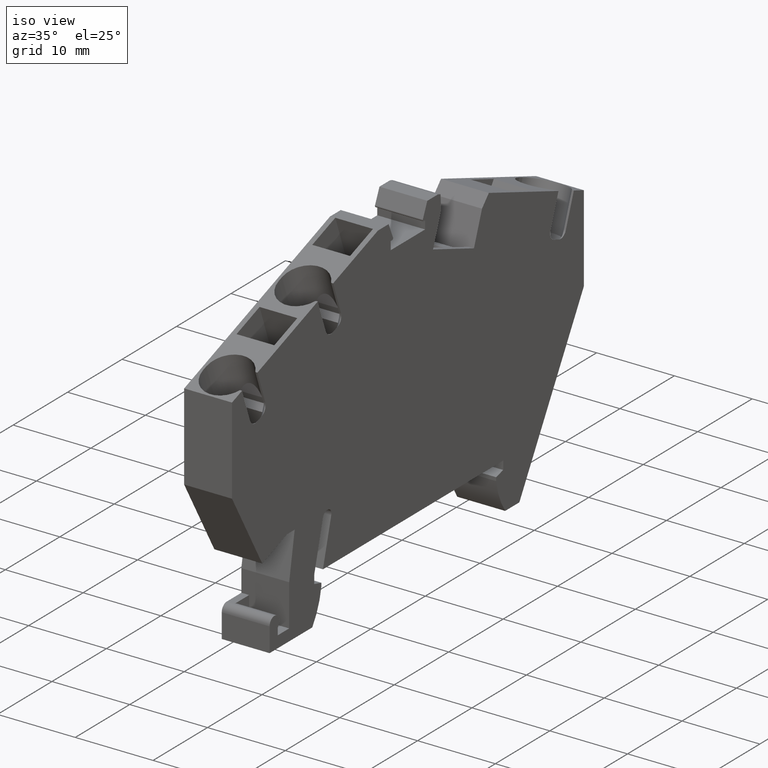
[diagram: clean part render]
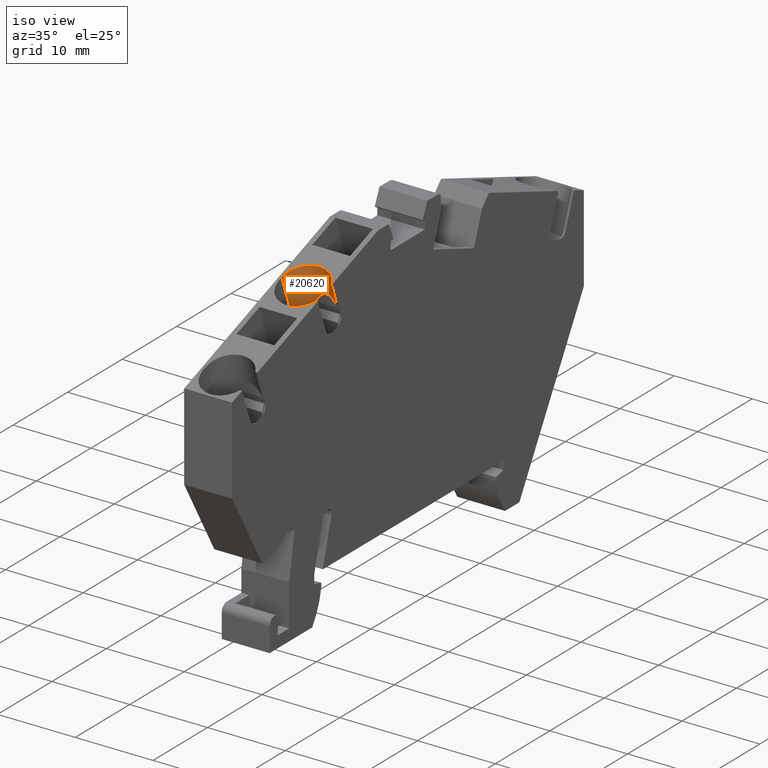
[diagram: same view with one face highlighted and labeled with its STEP entity id]
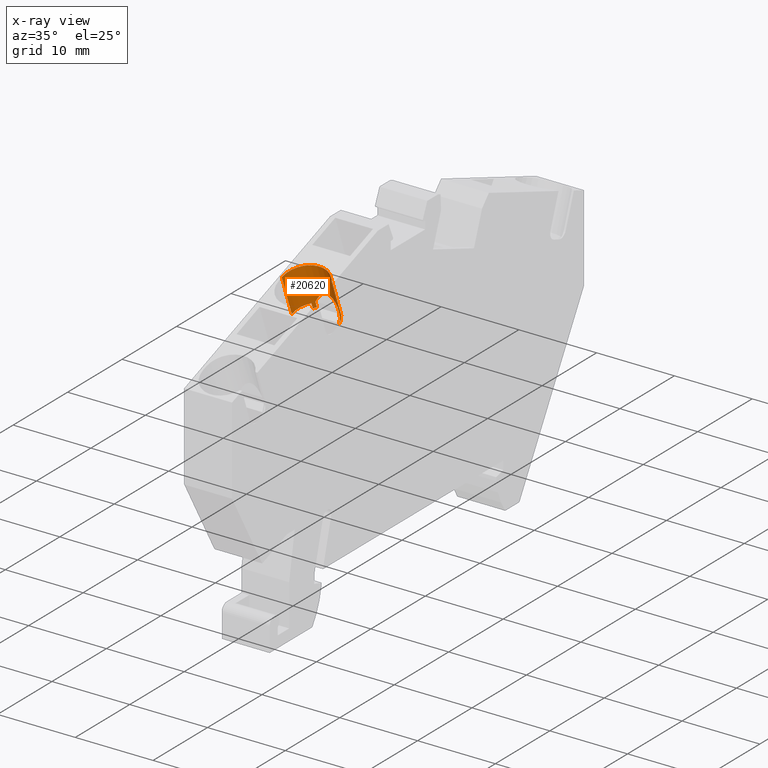
[diagram: x-ray of the same camera — body ghosted, the highlighted face saturated]
A machine part, iso view. The second image highlights one B-rep face of the part: STEP entity #20620.
The next image is the same camera in x-ray: the body ghosted, the highlighted face saturated — about 0% of this face is hidden behind the body in this view.
In plain terms, the highlighted cylindrical surface (edge-blend (fillet) strip) has radius 2.9 mm, axis along (0, -0.342, 0.9397).
Its self-contained STEP definition (entity closure, byte-faithful):
#10360=CARTESIAN_POINT('',(-88.4334431390621,45.0985003413182,
-4.85000000000002));
#10370=DIRECTION('',(-0.342020143325675,0.939692620785906,
-3.52120158727582E-15));
#10380=VECTOR('',#10370,1.);
#10390=LINE('',#10360,#10380);
#10400=CARTESIAN_POINT('',(-87.6467968094131,42.9372073135107,
-4.85000000000003));
#10410=VERTEX_POINT('',#10400);
#10420=CARTESIAN_POINT('',(-89.4595035690465,47.917578203696,
-4.85000000000003));
#10430=VERTEX_POINT('',#10420);
#10440=EDGE_CURVE('',#10410,#10430,#10390,.T.);
#11350=CARTESIAN_POINT('',(-87.4588582852486,43.0056113421785,
0.943095228297346));
#11360=VERTEX_POINT('',#11350);
#12350=CARTESIAN_POINT('',(-85.5482083957268,43.7010310300683,
-0.100000000000019));
#12360=VERTEX_POINT('',#12350);
#12390=CARTESIAN_POINT('',(-87.6467968094131,42.9372073135106,
-1.95000000000001));
#12400=DIRECTION('',(0.342020143325675,-0.939692620785906,
3.52120158727582E-15));
#12410=DIRECTION('',(0.939692620785906,0.342020143325675,0.));
#12420=AXIS2_PLACEMENT_3D('',#12390,#12400,#12410);
#12430=CIRCLE('',#12420,2.9);
#12440=EDGE_CURVE('',#12360,#11360,#12430,.T.);
#14040=CARTESIAN_POINT('',(-85.5482083957319,43.7010310300666,
-3.80000000000192));
#14050=VERTEX_POINT('',#14040);
#14080=CARTESIAN_POINT('',(-86.3348547253831,45.8623240578733,
-3.80000000000002));
#14090=DIRECTION('',(-0.342020143325675,0.939692620785906,
-3.52120158727582E-15));
#14100=VECTOR('',#14090,1.);
#14110=LINE('',#14080,#14100);
#14120=CARTESIAN_POINT('',(-85.2790132041431,42.9614233197664,
-3.80000000000002));
#14130=VERTEX_POINT('',#14120);
#14140=EDGE_CURVE('',#14130,#14050,#14110,.T.);
#14610=CARTESIAN_POINT('',(-87.0995925207768,41.4337758866536,-1.95));
#14620=DIRECTION('',(-0.642787609686522,0.766044443118993,
-6.67062597726445E-15));
#14630=DIRECTION('',(0.766044443118993,0.642787609686522,
8.03208955142407E-15));
#14640=AXIS2_PLACEMENT_3D('',#14610,#14620,#14630);
#14650=ELLIPSE('',#14640,3.08611554018011,2.9);
#14660=CARTESIAN_POINT('',(-85.2790132041431,42.9614233197664,
-0.100000000000019));
#14670=VERTEX_POINT('',#14660);
#14680=CARTESIAN_POINT('',(-85.0603273610232,43.1449225300754,
-0.482910211110409));
#14690=VERTEX_POINT('',#14680);
#14700=EDGE_CURVE('',#14670,#14690,#14650,.T.);
#14870=CARTESIAN_POINT('',(-85.0603273610232,43.1449225300754,
-3.41708978888964));
#14880=VERTEX_POINT('',#14870);
#14890=EDGE_CURVE('',#14880,#14130,#14650,.T.);
#15750=CARTESIAN_POINT('',(-87.6467968094131,42.9372073135106,
-1.95000000000001));
#15760=DIRECTION('',(0.342020143325675,-0.939692620785906,
3.52120158727582E-15));
#15770=DIRECTION('',(0.939692620785906,0.342020143325675,0.));
#15780=AXIS2_PLACEMENT_3D('',#15750,#15760,#15770);
#15790=CIRCLE('',#15780,2.9);
#15800=EDGE_CURVE('',#10410,#14050,#15790,.T.);
#16980=CARTESIAN_POINT('',(-88.3318724240966,48.3280023756893,
0.690075756488979));
#16990=VERTEX_POINT('',#16980);
#17020=CARTESIAN_POINT('',(-89.459503569032,47.9175782036786,
-1.95000000000002));
#17030=DIRECTION('',(0.342020143325675,-0.939692620785906,
-1.11022302462516E-16));
#17040=DIRECTION('',(0.939692620785906,0.342020143325675,
-1.51526992781977E-34));
#17050=AXIS2_PLACEMENT_3D('',#17020,#17030,#17040);
#17060=CIRCLE('',#17050,2.9);
#17070=EDGE_CURVE('',#10430,#16990,#17060,.T.);
#19320=CARTESIAN_POINT('',(-88.4334431390625,45.0985003413416,
-1.95000000000003));
#19330=DIRECTION('',(-0.342020143325675,0.939692620785906,
1.11022302462516E-16));
#19340=DIRECTION('',(0.939692620785906,0.342020143325675,
-1.51526992781977E-34));
#19350=AXIS2_PLACEMENT_3D('',#19320,#19330,#19340);
#19360=CYLINDRICAL_SURFACE('',#19350,2.9);
#19370=CARTESIAN_POINT('',(-87.8008784285743,43.9453039629644,
0.949999999999993));
#19380=DIRECTION('',(1.25459442485363E-15,4.32196695483859E-15,1.));
#19390=DIRECTION('',(0.,1.,-4.32196695483859E-15));
#19400=AXIS2_PLACEMENT_3D('',#19370,#19380,#19390);
#19410=CYLINDRICAL_SURFACE('',#19400,1.);
#19420=CARTESIAN_POINT('',(-87.4588582852125,43.0056113421916,
0.943095228295201));
#19430=CARTESIAN_POINT('',(-87.4433539179078,43.0112544703924,
0.941954622697154));
#19440=CARTESIAN_POINT('',(-87.4279883813417,43.0172819383613,
0.940671948752114));
#19450=CARTESIAN_POINT('',(-87.4127923425728,43.0236808350797,
0.939250030449606));
#19460=CARTESIAN_POINT('',(-87.3975963034885,43.0300797319308,
0.93782811211759));
#19470=CARTESIAN_POINT('',(-87.3825700533477,43.0368499326893,
0.936266978610965));
#19480=CARTESIAN_POINT('',(-87.367742664684,43.0439752715098,
0.934571592018795));
#19490=CARTESIAN_POINT('',(-87.3381059728727,43.0582172581109,
0.931182886760371));
#19500=CARTESIAN_POINT('',(-87.3091901148039,43.0739146449162,
0.927248108122857));
#19510=CARTESIAN_POINT('',(-87.2811561791448,43.090968675476,
0.922810814167936));
#19520=CARTESIAN_POINT('',(-87.2531134808212,43.1080280366732,
0.918372133232652));
#19530=CARTESIAN_POINT('',(-87.2260311026975,43.1263922019452,
0.913444854937342));
#19540=CARTESIAN_POINT('',(-87.1999354714609,43.1460120498964,
0.908075762474785));
#19550=CARTESIAN_POINT('',(-87.1868826884762,43.1558257085575,
0.905390194223795));
#19560=CARTESIAN_POINT('',(-87.1740727001298,43.1659575813247,
0.902593127586528));
#19570=CARTESIAN_POINT('',(-87.1615272750219,43.1763890766136,
0.899694945840449));
#19580=CARTESIAN_POINT('',(-87.1489818586943,43.1868205646017,
0.896796766122755));
#19590=CARTESIAN_POINT('',(-87.1367011761844,43.1975515354865,
0.89379751787876));
#19600=CARTESIAN_POINT('',(-87.1247052625889,43.2085612333757,
0.890709068295301));
#19610=CARTESIAN_POINT('',(-87.1007075112548,43.2305860662575,
0.884530643907568));
#19620=CARTESIAN_POINT('',(-87.0778750535204,43.2537021778897,
0.878001493063468));
#19630=CARTESIAN_POINT('',(-87.0562771299652,43.2777944827998,
0.87121059364134));
#19640=CARTESIAN_POINT('',(-87.0346549428482,43.3019138535121,
0.864412065179901));
#19650=CARTESIAN_POINT('',(-87.0141663021912,43.3271306394373,
0.857317554802565));
#19660=CARTESIAN_POINT('',(-86.9949445489874,43.3532984040799,
0.850035359626563));
#19670=CARTESIAN_POINT('',(-86.9757229754398,43.3794659241454,
0.842753232513654));
#19680=CARTESIAN_POINT('',(-86.9577712719388,43.406580601386,
0.835284818135945));
#19690=CARTESIAN_POINT('',(-86.9411984019025,43.4344710629321,
0.827752929887583));
#19700=CARTESIAN_POINT('',(-86.9246254749321,43.4623616202926,
0.820221015764329));
#19710=CARTESIAN_POINT('',(-86.9094336185105,43.4910239449752,
0.812627099876872));
#19720=CARTESIAN_POINT('',(-86.8956992612762,43.5202737580495,
0.805099709954576));
#19730=CARTESIAN_POINT('',(-86.8888321437703,43.5348985344392,
0.801336048486673));
#19740=CARTESIAN_POINT('',(-86.8823290524587,43.5496696765012,
0.797589149337359));
#19750=CARTESIAN_POINT('',(-86.8761963579884,43.5645638044087,
0.793874925035799));
#19760=CARTESIAN_POINT('',(-86.8700649815319,43.5794547313308,
0.790161498980203));
#19770=CARTESIAN_POINT('',(-86.8642759329137,43.5945364063294,
0.786463789389223));
#19780=CARTESIAN_POINT('',(-86.8588439526558,43.6097878736615,
0.782798709267751));
#19790=CARTESIAN_POINT('',(-86.8479799392776,43.6402909567488,
0.775468513357286));
#19800=CARTESIAN_POINT('',(-86.8385473399666,43.6714718810517,
0.768269568432719));
#19810=CARTESIAN_POINT('',(-86.8306438815805,43.7031368227063,
0.761341476269318));
#19820=CARTESIAN_POINT('',(-86.8227404734016,43.7348015632076,
0.754413428116997));
#19830=CARTESIAN_POINT('',(-86.816367729287,43.7669449764942,
0.747758006916531));
#19840=CARTESIAN_POINT('',(-86.8115863669473,43.7993545991357,
0.741508909428254));
#19850=CARTESIAN_POINT('',(-86.8068049613108,43.8317645152562,
0.73525975535248));
#19860=CARTESIAN_POINT('',(-86.8036156879694,43.8644345605151,
0.729418609480291));
#19870=CARTESIAN_POINT('',(-86.8020384693104,43.8971507099299,
0.724101190857229));
#19880=CARTESIAN_POINT('',(-86.8012498677413,43.9135086236647,
0.721442507708898));
#19890=CARTESIAN_POINT('',(-86.8008636827623,43.9298774911686,
0.718914513904708));
#19900=CARTESIAN_POINT('',(-86.8008788591363,43.9462319292703,
0.716529226058851));
#19910=CARTESIAN_POINT('',(-86.8008940372222,43.9625882120761,
0.714143669163662));
#19920=CARTESIAN_POINT('',(-86.8013108384145,43.979008351593,
0.711889443633552));
#19930=CARTESIAN_POINT('',(-86.802137055616,43.9954604175989,
0.709781900360714));
#19940=CARTESIAN_POINT('',(-86.8029632684498,44.0119123966313,
0.707674368229349));
#19950=CARTESIAN_POINT('',(-86.8041989178045,44.0283959864334,
0.705713592556852));
#19960=CARTESIAN_POINT('',(-86.8058481356412,44.0448766306267,
0.703913243383893));
#19970=CARTESIAN_POINT('',(-86.807497348052,44.0613572205998,
0.70211290013397));
#19980=CARTESIAN_POINT('',(-86.8095601182456,44.077834510677,
0.700473050412212));
#19990=CARTESIAN_POINT('',(-86.8120364857766,44.0942724568286,
0.699005058032552));
#20000=CARTESIAN_POINT('',(-86.8145128500174,44.1107103811401,
0.697537067603331));
#20010=CARTESIAN_POINT('',(-86.8174027663182,44.1271085792589,
0.696240989163797));
#20020=CARTESIAN_POINT('',(-86.8207020182993,44.1434307020492,
0.695125381230222));
#20030=CARTESIAN_POINT('',(-86.8240012725435,44.1597528360362,
0.694009772531359));
#20040=CARTESIAN_POINT('',(-86.8277097808472,44.1759984983474,
0.693074671928892));
#20050=CARTESIAN_POINT('',(-86.8318191982816,44.1921322599332,
0.69232549879164));
#20060=CARTESIAN_POINT('',(-86.8359286273943,44.2082660673688,
0.691576323525348));
#20070=CARTESIAN_POINT('',(-86.8404388483355,44.2242875808319,
0.691013092690677));
#20080=CARTESIAN_POINT('',(-86.8453378347324,44.2401635456818,
0.690637953283842));
#20090=CARTESIAN_POINT('',(-86.8502368466896,44.2560395933641,
0.69026281191973));
#20100=CARTESIAN_POINT('',(-86.8555244749606,44.2717697221819,
0.690075756488741));
#20110=CARTESIAN_POINT('',(-86.8611858077884,44.2873241062902,
0.690075756488742));
#20120=B_SPLINE_CURVE_WITH_KNOTS('',3,(#19420,#19430,#19440,#19450,
#19460,#19470,#19480,#19490,#19500,#19510,#19520,#19530,#19540,#19550,
#19560,#19570,#19580,#19590,#19600,#19610,#19620,#19630,#19640,#19650,
#19660,#19670,#19680,#19690,#19700,#19710,#19720,#19730,#19740,#19750,
#19760,#19770,#19780,#19790,#19800,#19810,#19820,#19830,#19840,#19850,
#19860,#19870,#19880,#19890,#19900,#19910,#19920,#19930,#19940,#19950,
#19960,#19970,#19980,#19990,#20000,#20010,#20020,#20030,#20040,#20050,
#20060,#20070,#20080,#20090,#20100,#20110),.UNSPECIFIED.,.F.,.F.,(4,3,3,
3,3,3,3,3,3,3,3,3,3,3,3,3,3,3,3,3,3,3,3,4),(0.,0.0496379123720511,
0.0992743839725252,0.19853465318314,0.297792406117514,0.347478465176904,
0.397199273599849,0.496515161530405,0.596107063337531,0.696015515374569,
0.79577957830775,0.845462830073803,0.895156564135526,0.995043402141488,
1.0951556523707,1.19498891443795,1.24466972685918,1.29437996106077,
1.34428740364921,1.39431670124624,1.44438952528661,1.49442843193861,
1.54436065265214,1.59412217078908),.UNSPECIFIED.);
#20130=SURFACE_CURVE('',#20120,(#19410,#19360),.CURVE_3D.);
#20140=CARTESIAN_POINT('',(-86.8611858077884,44.2873241062902,
0.690075756488799));
#20150=VERTEX_POINT('',#20140);
#20160=EDGE_CURVE('',#11360,#20150,#20130,.T.);
#20170=ORIENTED_EDGE('',*,*,#20160,.T.);
#20180=ORIENTED_EDGE('',*,*,#12440,.T.);
#20190=CARTESIAN_POINT('',(-86.3348547253831,45.8623240578733,
-0.100000000000019));
#20200=DIRECTION('',(-0.342020143325675,0.939692620785906,
-3.52120158727582E-15));
#20210=VECTOR('',#20200,1.);
#20220=LINE('',#20190,#20210);
#20230=EDGE_CURVE('',#14670,#12360,#20220,.T.);
#20240=ORIENTED_EDGE('',*,*,#20230,.T.);
#20250=ORIENTED_EDGE('',*,*,#14700,.F.);
#20260=CARTESIAN_POINT('',(-86.0827747569736,45.9540736630291,
-0.48291021112346));
#20270=DIRECTION('',(-0.342020143325675,0.939692620785906,
-3.52120158727582E-15));
#20280=VECTOR('',#20270,1.);
#20290=LINE('',#20260,#20280);
#20300=CARTESIAN_POINT('',(-85.3439304672806,43.9241156606096,
-0.482910211113253));
#20310=VERTEX_POINT('',#20300);
#20320=EDGE_CURVE('',#14690,#20310,#20290,.T.);
#20330=ORIENTED_EDGE('',*,*,#20320,.F.);
#20340=CARTESIAN_POINT('',(-85.0614149222929,35.833928957981,
-1.94999999999998));
#20350=DIRECTION('',(0.999390827019096,0.0348994967025081,
1.05492355006712E-15));
#20360=DIRECTION('',(0.0348994967025081,-0.999390827019096,
3.35964501351161E-15));
#20370=AXIS2_PLACEMENT_3D('',#20340,#20350,#20360);
#20380=ELLIPSE('',#20370,9.3845971347494,2.9);
#20390=CARTESIAN_POINT('',(-85.3439304672806,43.9241156606096,
-3.41708978888679));
#20400=VERTEX_POINT('',#20390);
#20410=EDGE_CURVE('',#20400,#20310,#20380,.T.);
#20420=ORIENTED_EDGE('',*,*,#20410,.T.);
#20430=CARTESIAN_POINT('',(-86.0827747569736,45.9540736630291,
-3.41708978887657));
#20440=DIRECTION('',(-0.342020143325675,0.939692620785906,
-3.52120158727582E-15));
#20450=VECTOR('',#20440,1.);
#20460=LINE('',#20430,#20450);
#20470=EDGE_CURVE('',#14880,#20400,#20460,.T.);
#20480=ORIENTED_EDGE('',*,*,#20470,.T.);
#20490=ORIENTED_EDGE('',*,*,#14890,.F.);
#20500=ORIENTED_EDGE('',*,*,#14140,.F.);
#20510=ORIENTED_EDGE('',*,*,#15800,.T.);
#20520=ORIENTED_EDGE('',*,*,#10440,.F.);
#20530=ORIENTED_EDGE('',*,*,#17070,.F.);
#20540=CARTESIAN_POINT('',(-87.305811994119,45.508924513309,
0.690075756488795));
#20550=DIRECTION('',(-0.342020143325675,0.939692620785906,
-3.52120158727582E-15));
#20560=VECTOR('',#20550,1.);
#20570=LINE('',#20540,#20560);
#20580=EDGE_CURVE('',#20150,#16990,#20570,.T.);
#20590=ORIENTED_EDGE('',*,*,#20580,.T.);
#20600=EDGE_LOOP('',(#20590,#20530,#20520,#20510,#20500,#20490,#20480,
#20420,#20330,#20250,#20240,#20180,#20170));
#20610=FACE_OUTER_BOUND('',#20600,.T.);
#20620=ADVANCED_FACE('',(#20610),#19360,.F.);